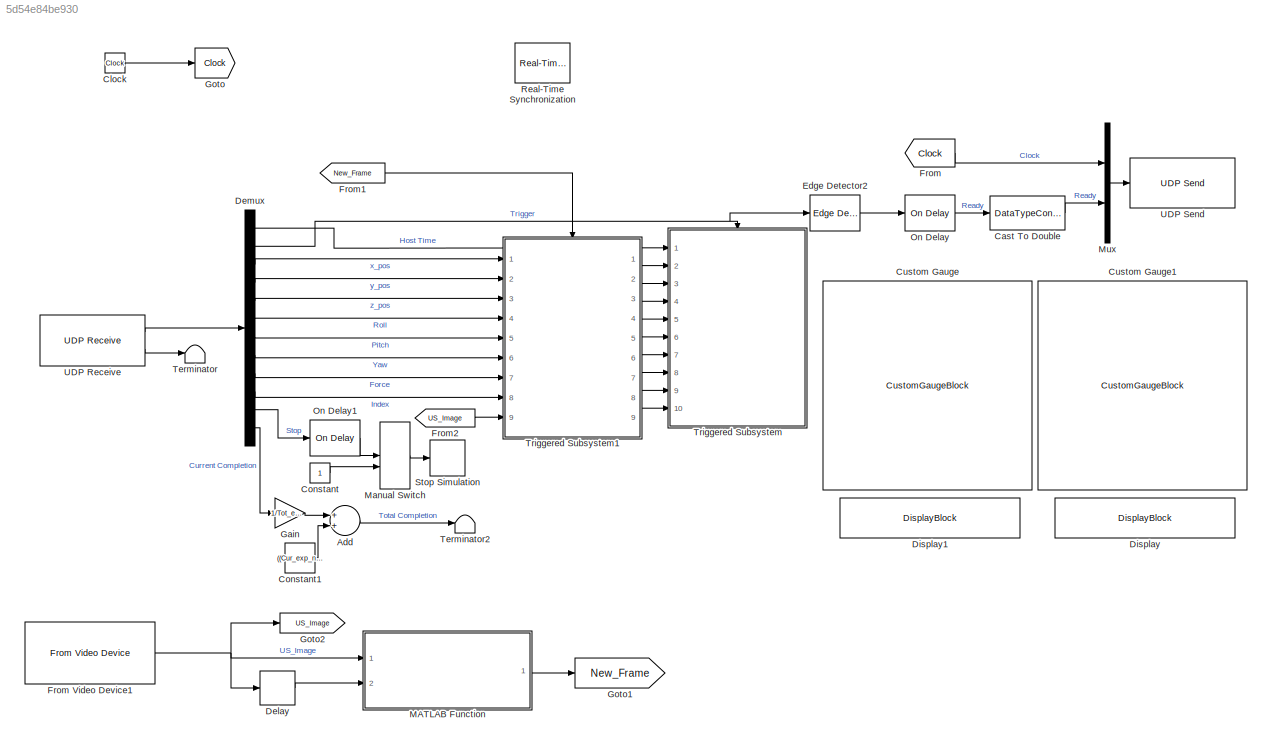
MODEL slx_5d54e84be930
KIND model
CONFIG AbsTol = auto
CONFIG EnableMultiTasking = off
CONFIG FixedStep = Sam_time
CONFIG MaxStep = auto
CONFIG MinStep = auto
CONFIG RelTol = 1e-3
CONFIG SampleTimeConstraint = Unconstrained
CONFIG Solver = FixedStepAuto
CONFIG SolverName = FixedStepAuto
CONFIG StartTime = 0.0
CONFIG StopTime = inf
BLOCK [Sum] Add
  InputSameDT = off
  OutDataTypeStr = Inherit: Inherit via internal rule
  Ports = [2, 1]
  SaturateOnIntegerOverflow = off
BLOCK [DataTypeConversion] Cast To Double
  OutDataTypeStr = double
  RndMeth = Floor
  SaturateOnIntegerOverflow = off
BLOCK [Clock] Clock
BLOCK [Constant] Constant
BLOCK [Constant] Constant1
  SampleTime = Sam_time
  Value = ((Cur_exp_num-1)/Tot_exp_num)*100
BLOCK [CustomGaugeBlock] Custom Gauge
  BackgroundImage = data:image/svg+xml;base64,PD94bWwgdmVyc2lvbj0iMS4wIiBlbmNvZGluZz0iVVRGLTgiIHN0YW5kYWxvbmU9Im5vIj8+CjwhLS0gR2VuZXJhdG9yOiBBZG9iZSBJbGx1c3RyYXRvciAxOS4yLjEsIFNWRyBFeHBvcnQgUGx1Zy1JbiAuIFNWRyBWZXJzaW9uOiA2LjAwIEJ1aWxkIDApICAtLT4KCjxzdmcKICAgeG1sbnM6ZGM9Imh0dHA6Ly9wdXJsLm9yZy9kYy9lbGVtZW50cy8xLjEvIgogICB4bWxuczpjYz0iaHR0cDovL2NyZWF0aXZlY29tbW9ucy5vcmcvbnMjIgogICB4bWxuczpyZGY9Imh0dHA6Ly93d3cudzMub3JnLz...<+9686ch>
  GaugeArcDefined = true
  GaugeArcRadius = 0.1358563990074277
  GaugeArcRatio = 0.8333333333333
  GaugeArcRotation = 240.5385250290321
  GaugeArcStrokeWidth = 0.03972965542329953
  GaugeArcTransparency = 0
  GaugeTickColor = #faf5c8
  NeedleHeight = 0.11602152693163792
  NeedleImage = data:image/svg+xml;base64,PD94bWwgdmVyc2lvbj0iMS4wIiBlbmNvZGluZz0idXRmLTgiPz4KPCEtLSBHZW5lcmF0b3I6IEFkb2JlIElsbHVzdHJhdG9yIDE5LjIuMSwgU1ZHIEV4cG9ydCBQbHVnLUluIC4gU1ZHIFZlcnNpb246IDYuMDAgQnVpbGQgMCkgIC0tPgo8c3ZnIHZlcnNpb249IjEuMSIgeG1sbnM9Imh0dHA6Ly93d3cudzMub3JnLzIwMDAvc3ZnIiB4bWxuczp4bGluaz0iaHR0cDovL3d3dy53My5vcmcvMTk5OS94bGluayIgeD0iMHB4IiB5PSIwcHgiCgkgdmlld0JveD0iMCAwIDIwMCA1MCIgc3R5bGU9ImVuYW...<+9966ch>
  NeedleInitialRotation = -59.94322499147643
  NeedleWidth = 0.1911368983686954
  NeedleXPos = 0.3802298124325669
  NeedleYPos = 0.48117305677424654
  ScaleColorsJSON = []
  ValueArcColor = #1759b0
  fixedAspectRatio = on
BLOCK [CustomGaugeBlock] Custom Gauge1
  BackgroundImage = data:image/svg+xml;base64,PD94bWwgdmVyc2lvbj0iMS4wIiBlbmNvZGluZz0iVVRGLTgiIHN0YW5kYWxvbmU9Im5vIj8+CjwhLS0gR2VuZXJhdG9yOiBBZG9iZSBJbGx1c3RyYXRvciAxOS4yLjEsIFNWRyBFeHBvcnQgUGx1Zy1JbiAuIFNWRyBWZXJzaW9uOiA2LjAwIEJ1aWxkIDApICAtLT4KCjxzdmcKICAgeG1sbnM6ZGM9Imh0dHA6Ly9wdXJsLm9yZy9kYy9lbGVtZW50cy8xLjEvIgogICB4bWxuczpjYz0iaHR0cDovL2NyZWF0aXZlY29tbW9ucy5vcmcvbnMjIgogICB4bWxuczpyZGY9Imh0dHA6Ly93d3cudzMub3JnLz...<+9686ch>
  GaugeArcDefined = true
  GaugeArcRadius = 0.1358563990074277
  GaugeArcRatio = 0.8333333333333
  GaugeArcRotation = 240.5385250290321
  GaugeArcStrokeWidth = 0.03972965542329953
  GaugeArcTransparency = 0
  GaugeTickColor = #faf5c8
  NeedleHeight = 0.11602152693163792
  NeedleImage = data:image/svg+xml;base64,PD94bWwgdmVyc2lvbj0iMS4wIiBlbmNvZGluZz0idXRmLTgiPz4KPCEtLSBHZW5lcmF0b3I6IEFkb2JlIElsbHVzdHJhdG9yIDE5LjIuMSwgU1ZHIEV4cG9ydCBQbHVnLUluIC4gU1ZHIFZlcnNpb246IDYuMDAgQnVpbGQgMCkgIC0tPgo8c3ZnIHZlcnNpb249IjEuMSIgeG1sbnM9Imh0dHA6Ly93d3cudzMub3JnLzIwMDAvc3ZnIiB4bWxuczp4bGluaz0iaHR0cDovL3d3dy53My5vcmcvMTk5OS94bGluayIgeD0iMHB4IiB5PSIwcHgiCgkgdmlld0JveD0iMCAwIDIwMCA1MCIgc3R5bGU9ImVuYW...<+9966ch>
  NeedleInitialRotation = -59.94322499147643
  NeedleWidth = 0.1911368983686954
  NeedleXPos = 0.3802298124325669
  NeedleYPos = 0.48117305677424654
  ScaleColorsJSON = []
  ValueArcColor = #1759b0
  fixedAspectRatio = on
BLOCK [Delay] Delay
  DelayLength = 1
  InputPortMap = u0
  InputProcessing = Columns as channels (frame based)
  Ports = [1, 1]
  SampleTime = Epiphan_speed
BLOCK [Demux] Demux
  DisplayOption = bar
  Outputs = UDP_in
  Ports = [1, 12]
BLOCK [DisplayBlock] Display
  Format = short
  LabelPosition = Hide
BLOCK [DisplayBlock] Display1
  Format = short
  LabelPosition = Hide
BLOCK [Reference] Edge Detector2  REF=powerlib_meascontrol/Logic/Edge Detector
  Ports = [1, 1]
  SourceBlock = powerlib_meascontrol/Logic/Edge Detector
  SourceProductBaseCode = PS
  SourceProductName = Simscape Electrical
  SourceType = Edge Detector
BLOCK [From] From
  GotoTag = Clock
BLOCK [Reference] From Video Device1  REF=imaqlib/From Video Device
  Ports = [0, 1]
  SourceBlock = imaqlib/From Video Device
  SourceProductBaseCode = IA
  SourceProductName = Image Acquisition Toolbox
  SourceType = From Video Device
  UserDataPersistent = on
BLOCK [From] From1
  GotoTag = New_Frame
BLOCK [From] From2
  GotoTag = US_Image
BLOCK [Gain] Gain
  Gain = 1/Tot_exp_num
  OutDataTypeStr = Inherit: Inherit via internal rule
  ParamDataTypeStr = Inherit: Inherit via internal rule
  SaturateOnIntegerOverflow = off
BLOCK [Goto] Goto
  GotoTag = Clock
BLOCK [Goto] Goto1
  GotoTag = New_Frame
BLOCK [Goto] Goto2
  GotoTag = US_Image
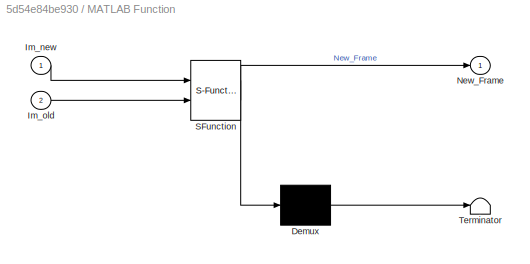
BLOCK [SubSystem] MATLAB Function
  ErrorFcn = Stateflow.Translate.translate
  PermitHierarchicalResolution = ExplicitOnly
  Ports = [2, 1]
  RequestExecContextInheritance = off
  SFBlockType = MATLAB Function
  TreatAsAtomicUnit = on
BLOCK [Demux] MATLAB Function/ Demux 
  Outputs = 1
  Ports = [1, 1]
BLOCK [S-Function] MATLAB Function/ SFunction 
  EnableBusSupport = on
  FunctionName = sf_sfun
  PortCounts = [2 2]
  Ports = [2, 2]
  SFcnIsStateOwnerBlock = off
  SFunctionDeploymentMode = off
  Tag = Stateflow S-Function US_Image_Acquire_Trigger_V2 2
BLOCK [Terminator] MATLAB Function/ Terminator 
BLOCK [Inport] MATLAB Function/Im_new
  IconDisplay = Port number
BLOCK [Inport] MATLAB Function/Im_old
  IconDisplay = Port number
  Port = 2
BLOCK [Outport] MATLAB Function/New_Frame
  IconDisplay = Port number
BLOCK [ManualSwitch] Manual Switch
BLOCK [Mux] Mux
  DisplayOption = bar
  Inputs = 2
  Ports = [2, 1]
BLOCK [Reference] On Delay  REF=powerlib_meascontrol/Logic/On Delay
  Ports = [1, 1]
  SourceBlock = powerlib_meascontrol/Logic/On Delay
  SourceProductBaseCode = PS
  SourceProductName = Simscape Electrical
  SourceType = On/Off Delay
BLOCK [Reference] On Delay1  REF=powerlib_meascontrol/Logic/On Delay
  Ports = [1, 1]
  SourceBlock = powerlib_meascontrol/Logic/On Delay
  SourceProductBaseCode = PS
  SourceProductName = Simscape Electrical
  SourceType = On/Off Delay
BLOCK [Reference] Real-Time Synchronization  REF=sldrtlib/Real-Time
Synchronization
  Commented = on
  Ports = []
  SourceBlock = sldrtlib/Real-Time\nSynchronization
  SourceProductBaseCode = WT
  SourceProductName = Simulink Desktop Real-Time
  SourceType = Simulink Desktop Real-Time Synchronization
BLOCK [Stop] Stop Simulation
BLOCK [Terminator] Terminator
BLOCK [Terminator] Terminator2
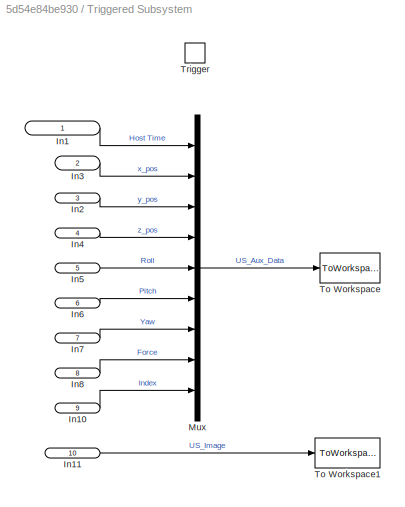
BLOCK [SubSystem] Triggered Subsystem
  Ports = [10, 0, 0, 1]
  RequestExecContextInheritance = off
  TreatAsAtomicUnit = on
BLOCK [Inport] Triggered Subsystem/In1
  IconDisplay = Signal name
BLOCK [Inport] Triggered Subsystem/In10
  IconDisplay = Signal name
  Port = 9
BLOCK [Inport] Triggered Subsystem/In11
  IconDisplay = Signal name
  Port = 10
BLOCK [Inport] Triggered Subsystem/In2
  IconDisplay = Signal name
  Port = 3
BLOCK [Inport] Triggered Subsystem/In3
  IconDisplay = Signal name
  Port = 2
BLOCK [Inport] Triggered Subsystem/In4
  IconDisplay = Signal name
  Port = 4
BLOCK [Inport] Triggered Subsystem/In5
  IconDisplay = Signal name
  Port = 5
BLOCK [Inport] Triggered Subsystem/In6
  IconDisplay = Signal name
  Port = 6
BLOCK [Inport] Triggered Subsystem/In7
  IconDisplay = Signal name
  Port = 7
BLOCK [Inport] Triggered Subsystem/In8
  IconDisplay = Signal name
  Port = 8
BLOCK [Mux] Triggered Subsystem/Mux
  DisplayOption = bar
  Inputs = 9
  Ports = [9, 1]
BLOCK [ToWorkspace] Triggered Subsystem/To Workspace
  FixptAsFi = on
  MaxDataPoints = inf
  Ports = [1]
  SampleTime = -1
  Save2DSignal = 2-D array (concatenate along first dimension)
  VariableName = US_Aux_Data
BLOCK [ToWorkspace] Triggered Subsystem/To Workspace1
  FixptAsFi = on
  MaxDataPoints = inf
  Ports = [1]
  SampleTime = -1
  Save2DSignal = 2-D array (concatenate along first dimension)
  SaveFormat = Structure With Time
  VariableName = US_Image_Data
BLOCK [TriggerPort] Triggered Subsystem/Trigger
  Ports = []
  StatesWhenEnabling = held
  VariantControl = Variant
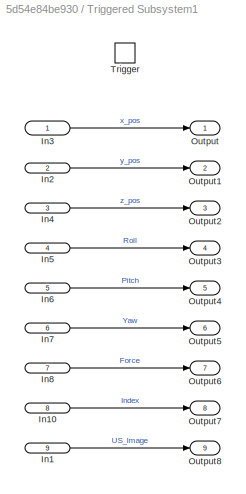
BLOCK [SubSystem] Triggered Subsystem1
  Ports = [9, 9, 0, 1]
  RequestExecContextInheritance = off
  TreatAsAtomicUnit = on
BLOCK [Inport] Triggered Subsystem1/In1
  IconDisplay = Signal name
  Port = 9
BLOCK [Inport] Triggered Subsystem1/In10
  IconDisplay = Signal name
  Port = 8
BLOCK [Inport] Triggered Subsystem1/In2
  IconDisplay = Signal name
  Port = 2
BLOCK [Inport] Triggered Subsystem1/In3
  IconDisplay = Signal name
BLOCK [Inport] Triggered Subsystem1/In4
  IconDisplay = Signal name
  Port = 3
BLOCK [Inport] Triggered Subsystem1/In5
  IconDisplay = Signal name
  Port = 4
BLOCK [Inport] Triggered Subsystem1/In6
  IconDisplay = Signal name
  Port = 5
BLOCK [Inport] Triggered Subsystem1/In7
  IconDisplay = Signal name
  Port = 6
BLOCK [Inport] Triggered Subsystem1/In8
  IconDisplay = Signal name
  Port = 7
BLOCK [Outport] Triggered Subsystem1/Output
  IconDisplay = Signal name
BLOCK [Outport] Triggered Subsystem1/Output1
  IconDisplay = Signal name
  Port = 2
BLOCK [Outport] Triggered Subsystem1/Output2
  IconDisplay = Signal name
  Port = 3
BLOCK [Outport] Triggered Subsystem1/Output3
  IconDisplay = Signal name
  Port = 4
BLOCK [Outport] Triggered Subsystem1/Output4
  IconDisplay = Signal name
  Port = 5
BLOCK [Outport] Triggered Subsystem1/Output5
  IconDisplay = Signal name
  Port = 6
BLOCK [Outport] Triggered Subsystem1/Output6
  IconDisplay = Signal name
  Port = 7
BLOCK [Outport] Triggered Subsystem1/Output7
  IconDisplay = Signal name
  Port = 8
BLOCK [Outport] Triggered Subsystem1/Output8
  IconDisplay = Signal name
  Port = 9
BLOCK [TriggerPort] Triggered Subsystem1/Trigger
  Ports = []
  StatesWhenEnabling = held
  VariantControl = Variant
BLOCK [Reference] UDP Receive  REF=dspnetwork/UDP Receive
  Ports = [0, 2]
  SourceBlock = dspnetwork/UDP Receive
  SourceProductBaseCode = DS
  SourceProductName = DSP System Toolbox
  SourceType = UDP Receive
BLOCK [Reference] UDP Send  REF=dspnetwork/UDP Send
  Ports = [1]
  SourceBlock = dspnetwork/UDP Send
  SourceProductBaseCode = SL
  SourceProductName = Simulink
  SourceType = UDP Send
LINE Add:1 -> Terminator2:1
LINE Cast To Double:1 -> Mux:2
LINE Clock:1 -> Goto:1
LINE Constant1:1 -> Add:2
LINE Constant:1 -> Manual Switch:2
LINE Delay:1 -> MATLAB Function:2
LINE Demux:1 -> Triggered Subsystem:1
LINE Demux:10 -> Triggered Subsystem1:8
LINE Demux:11 -> On Delay1:1
LINE Demux:12 -> Gain:1
NET Demux:2 -> Edge Detector2:1, Triggered Subsystem:trigger
LINE Demux:3 -> Triggered Subsystem1:1
LINE Demux:4 -> Triggered Subsystem1:2
LINE Demux:5 -> Triggered Subsystem1:3
LINE Demux:6 -> Triggered Subsystem1:4
LINE Demux:7 -> Triggered Subsystem1:5
LINE Demux:8 -> Triggered Subsystem1:6
LINE Demux:9 -> Triggered Subsystem1:7
LINE Edge Detector2:1 -> On Delay:1
NET From Video Device1:1 -> Delay:1, Goto2:1, MATLAB Function:1
LINE From1:1 -> Triggered Subsystem1:trigger
LINE From2:1 -> Triggered Subsystem1:9
LINE From:1 -> Mux:1
LINE Gain:1 -> Add:1
LINE MATLAB Function:1 -> Goto1:1
LINE Manual Switch:1 -> Stop Simulation:1
LINE Mux:1 -> UDP Send:1
LINE On Delay1:1 -> Manual Switch:1
LINE On Delay:1 -> Cast To Double:1
LINE Triggered Subsystem/In10:1 -> Triggered Subsystem/Mux:9
LINE Triggered Subsystem/In11:1 -> Triggered Subsystem/To Workspace1:1
LINE Triggered Subsystem/In1:1 -> Triggered Subsystem/Mux:1
LINE Triggered Subsystem/In2:1 -> Triggered Subsystem/Mux:3
LINE Triggered Subsystem/In3:1 -> Triggered Subsystem/Mux:2
LINE Triggered Subsystem/In4:1 -> Triggered Subsystem/Mux:4
LINE Triggered Subsystem/In5:1 -> Triggered Subsystem/Mux:5
LINE Triggered Subsystem/In6:1 -> Triggered Subsystem/Mux:6
LINE Triggered Subsystem/In7:1 -> Triggered Subsystem/Mux:7
LINE Triggered Subsystem/In8:1 -> Triggered Subsystem/Mux:8
LINE Triggered Subsystem/Mux:1 -> Triggered Subsystem/To Workspace:1
LINE Triggered Subsystem1/In10:1 -> Triggered Subsystem1/Output7:1
LINE Triggered Subsystem1/In1:1 -> Triggered Subsystem1/Output8:1
LINE Triggered Subsystem1/In2:1 -> Triggered Subsystem1/Output1:1
LINE Triggered Subsystem1/In3:1 -> Triggered Subsystem1/Output:1
LINE Triggered Subsystem1/In4:1 -> Triggered Subsystem1/Output2:1
LINE Triggered Subsystem1/In5:1 -> Triggered Subsystem1/Output3:1
LINE Triggered Subsystem1/In6:1 -> Triggered Subsystem1/Output4:1
LINE Triggered Subsystem1/In7:1 -> Triggered Subsystem1/Output5:1
LINE Triggered Subsystem1/In8:1 -> Triggered Subsystem1/Output6:1
LINE Triggered Subsystem1:1 -> Triggered Subsystem:2
LINE Triggered Subsystem1:2 -> Triggered Subsystem:3
LINE Triggered Subsystem1:3 -> Triggered Subsystem:4
LINE Triggered Subsystem1:4 -> Triggered Subsystem:5
LINE Triggered Subsystem1:5 -> Triggered Subsystem:6
LINE Triggered Subsystem1:6 -> Triggered Subsystem:7
LINE Triggered Subsystem1:7 -> Triggered Subsystem:8
LINE Triggered Subsystem1:8 -> Triggered Subsystem:9
LINE Triggered Subsystem1:9 -> Triggered Subsystem:10
LINE UDP Receive:1 -> Demux:1
LINE UDP Receive:2 -> Terminator:1
note: NET lines group one-source signal fan-out (src -> all destinations, sorted); 1:1 wires keep LINE
CHART MATLAB Function states=1 transitions=1
  STATE_LABEL 'eML_blk_kernel()'
  STATE_LABEL 'SCRIPT:\nfunction New_Frame = New_Frame(Im_new,Im_old)\ntic; % Starting timer\n\n% square_dim = [1 1 783-1 395-1];\n% \n% Im_new = Im_new(square_dim(1):square_dim(1)+square_dim(3),...\n%     square_dim(2):square_dim(1)+square_dim(4));\n% Im_old = Im_old(square_dim(1):square_dim(1)+square_dim(3),...\n%     square_dim(2):square_dim(1)+square_dim(4));\n\nif any(sum(sum(Im_old))) && any(sum(sum(Im_new)))\n    sam...<+714ch>'
